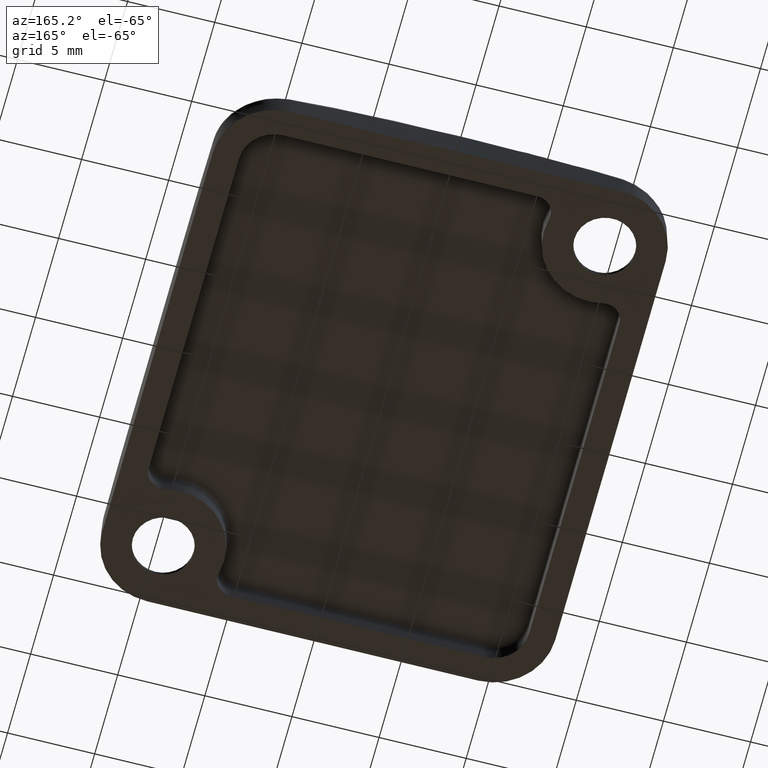
[diagram: clean part render]
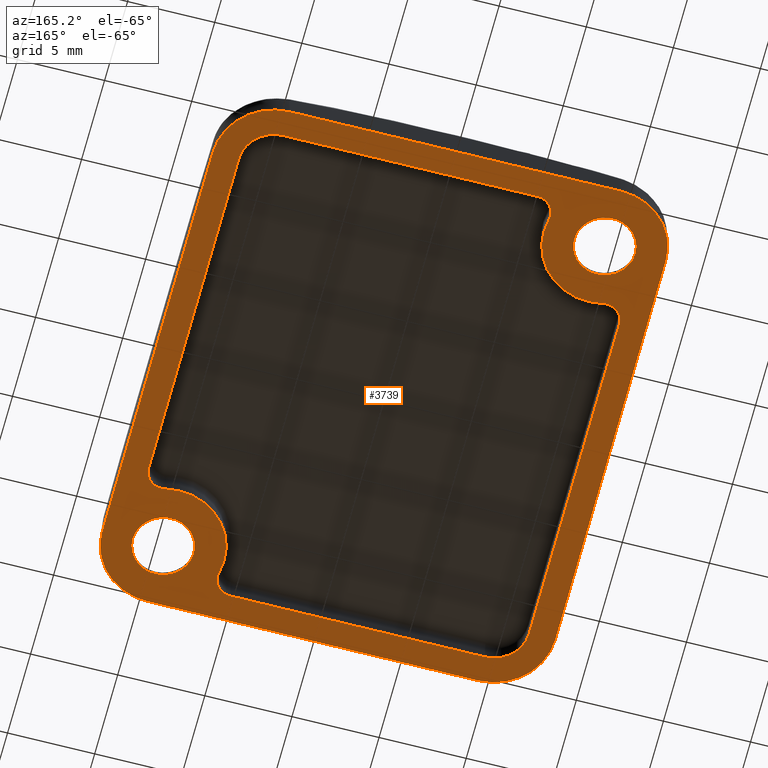
[diagram: same view with one face highlighted and labeled with its STEP entity id]
A machine part, auxiliary view. The second image highlights one B-rep face of the part: STEP entity #3739.
In plain terms, the highlighted planar face has unit normal (0, 0, 1).
Its self-contained STEP definition (entity closure, byte-faithful):
#219=DIRECTION('',(0.E0,1.E0,0.E0));
#220=VECTOR('',#219,2.4E1);
#221=CARTESIAN_POINT('',(1.3E1,-1.2E1,0.E0));
#222=LINE('',#221,#220);
#223=CARTESIAN_POINT('',(9.5E0,1.2E1,0.E0));
#224=DIRECTION('',(0.E0,0.E0,1.E0));
#225=DIRECTION('',(1.E0,0.E0,0.E0));
#226=AXIS2_PLACEMENT_3D('',#223,#224,#225);
#228=DIRECTION('',(-1.E0,0.E0,0.E0));
#229=VECTOR('',#228,1.9E1);
#230=CARTESIAN_POINT('',(9.5E0,1.55E1,0.E0));
#231=LINE('',#230,#229);
#232=CARTESIAN_POINT('',(-9.5E0,1.2E1,0.E0));
#233=DIRECTION('',(0.E0,0.E0,1.E0));
#234=DIRECTION('',(0.E0,1.E0,0.E0));
#235=AXIS2_PLACEMENT_3D('',#232,#233,#234);
#237=DIRECTION('',(0.E0,-1.E0,0.E0));
#238=VECTOR('',#237,2.4E1);
#239=CARTESIAN_POINT('',(-1.3E1,1.2E1,0.E0));
#240=LINE('',#239,#238);
#241=CARTESIAN_POINT('',(-9.5E0,-1.2E1,0.E0));
#242=DIRECTION('',(0.E0,0.E0,1.E0));
#243=DIRECTION('',(-1.E0,0.E0,0.E0));
#244=AXIS2_PLACEMENT_3D('',#241,#242,#243);
#246=DIRECTION('',(1.E0,0.E0,0.E0));
#247=VECTOR('',#246,1.9E1);
#248=CARTESIAN_POINT('',(-9.5E0,-1.55E1,0.E0));
#249=LINE('',#248,#247);
#250=CARTESIAN_POINT('',(9.5E0,-1.2E1,0.E0));
#251=DIRECTION('',(0.E0,0.E0,1.E0));
#252=DIRECTION('',(0.E0,-1.E0,0.E0));
#253=AXIS2_PLACEMENT_3D('',#250,#251,#252);
#255=CARTESIAN_POINT('',(-9.5E0,1.2E1,0.E0));
#256=DIRECTION('',(0.E0,0.E0,1.E0));
#257=DIRECTION('',(1.E0,0.E0,0.E0));
#258=AXIS2_PLACEMENT_3D('',#255,#256,#257);
#260=CARTESIAN_POINT('',(-9.5E0,1.2E1,0.E0));
#261=DIRECTION('',(0.E0,0.E0,1.E0));
#262=DIRECTION('',(-1.E0,0.E0,0.E0));
#263=AXIS2_PLACEMENT_3D('',#260,#261,#262);
#265=CARTESIAN_POINT('',(9.5E0,-1.2E1,0.E0));
#266=DIRECTION('',(0.E0,0.E0,1.E0));
#267=DIRECTION('',(1.E0,0.E0,0.E0));
#268=AXIS2_PLACEMENT_3D('',#265,#266,#267);
#270=CARTESIAN_POINT('',(9.5E0,-1.2E1,0.E0));
#271=DIRECTION('',(0.E0,0.E0,1.E0));
#272=DIRECTION('',(-1.E0,0.E0,0.E0));
#273=AXIS2_PLACEMENT_3D('',#270,#271,#272);
#275=CARTESIAN_POINT('',(-9.5E0,1.2E1,0.E0));
#276=DIRECTION('',(0.E0,0.E0,-1.E0));
#277=DIRECTION('',(9.749960430436E-1,2.222222222222E-1,0.E0));
#278=AXIS2_PLACEMENT_3D('',#275,#276,#277);
#280=DIRECTION('',(1.E0,0.E0,0.E0));
#281=VECTOR('',#280,1.461251780630E1);
#282=CARTESIAN_POINT('',(-5.112517806304E0,1.4E1,0.E0));
#283=LINE('',#282,#281);
#284=CARTESIAN_POINT('',(9.5E0,1.2E1,0.E0));
#285=DIRECTION('',(0.E0,0.E0,-1.E0));
#286=DIRECTION('',(0.E0,1.E0,0.E0));
#287=AXIS2_PLACEMENT_3D('',#284,#285,#286);
#289=DIRECTION('',(0.E0,-1.E0,0.E0));
#290=VECTOR('',#289,1.961251780630E1);
#291=CARTESIAN_POINT('',(1.15E1,1.2E1,0.E0));
#292=LINE('',#291,#290);
#293=CARTESIAN_POINT('',(9.5E0,-1.2E1,0.E0));
#294=DIRECTION('',(0.E0,0.E0,-1.E0));
#295=DIRECTION('',(-9.749960430436E-1,-2.222222222222E-1,0.E0));
#296=AXIS2_PLACEMENT_3D('',#293,#294,#295);
#298=DIRECTION('',(-1.E0,0.E0,0.E0));
#299=VECTOR('',#298,1.461251780630E1);
#300=CARTESIAN_POINT('',(5.112517806304E0,-1.4E1,0.E0));
#301=LINE('',#300,#299);
#302=CARTESIAN_POINT('',(-9.5E0,-1.2E1,0.E0));
#303=DIRECTION('',(0.E0,0.E0,-1.E0));
#304=DIRECTION('',(-1.021405182655E-13,-1.E0,0.E0));
#305=AXIS2_PLACEMENT_3D('',#302,#303,#304);
#307=DIRECTION('',(0.E0,1.E0,0.E0));
#308=VECTOR('',#307,1.961251780630E1);
#309=CARTESIAN_POINT('',(-1.15E1,-1.2E1,0.E0));
#310=LINE('',#309,#308);
#3121=CARTESIAN_POINT('',(-1.05E1,7.612517806304E0,0.E0));
#3122=DIRECTION('',(0.E0,0.E0,1.E0));
#3123=DIRECTION('',(2.222222222222E-1,9.749960430436E-1,0.E0));
#3124=AXIS2_PLACEMENT_3D('',#3121,#3122,#3123);
#3153=CARTESIAN_POINT('',(5.112517806304E0,-1.3E1,0.E0));
#3154=DIRECTION('',(0.E0,0.E0,1.E0));
#3155=DIRECTION('',(0.E0,-1.E0,0.E0));
#3156=AXIS2_PLACEMENT_3D('',#3153,#3154,#3155);
#3166=CARTESIAN_POINT('',(1.05E1,-7.612517806304E0,0.E0));
#3167=DIRECTION('',(0.E0,0.E0,1.E0));
#3168=DIRECTION('',(-2.222222222222E-1,-9.749960430436E-1,0.E0));
#3169=AXIS2_PLACEMENT_3D('',#3166,#3167,#3168);
#3210=CARTESIAN_POINT('',(-5.112517806304E0,1.3E1,0.E0));
#3211=DIRECTION('',(0.E0,0.E0,1.E0));
#3212=DIRECTION('',(0.E0,1.E0,0.E0));
#3213=AXIS2_PLACEMENT_3D('',#3210,#3211,#3212);
#3265=CARTESIAN_POINT('',(1.3E1,-1.2E1,0.E0));
#3266=CARTESIAN_POINT('',(1.3E1,1.2E1,0.E0));
#3267=VERTEX_POINT('',#3265);
#3268=VERTEX_POINT('',#3266);
#3269=CARTESIAN_POINT('',(9.5E0,1.55E1,0.E0));
#3270=VERTEX_POINT('',#3269);
#3271=CARTESIAN_POINT('',(-9.5E0,1.55E1,0.E0));
#3272=VERTEX_POINT('',#3271);
#3273=CARTESIAN_POINT('',(-1.3E1,1.2E1,0.E0));
#3274=VERTEX_POINT('',#3273);
#3275=CARTESIAN_POINT('',(-1.3E1,-1.2E1,0.E0));
#3276=VERTEX_POINT('',#3275);
#3277=CARTESIAN_POINT('',(-9.5E0,-1.55E1,0.E0));
#3278=VERTEX_POINT('',#3277);
#3279=CARTESIAN_POINT('',(9.5E0,-1.55E1,0.E0));
#3280=VERTEX_POINT('',#3279);
#3545=CARTESIAN_POINT('',(-7.75E0,1.2E1,0.E0));
#3546=CARTESIAN_POINT('',(-1.125E1,1.2E1,0.E0));
#3547=VERTEX_POINT('',#3545);
#3548=VERTEX_POINT('',#3546);
#3549=CARTESIAN_POINT('',(1.125E1,-1.2E1,0.E0));
#3550=CARTESIAN_POINT('',(7.75E0,-1.2E1,0.E0));
#3551=VERTEX_POINT('',#3549);
#3552=VERTEX_POINT('',#3550);
#3585=CARTESIAN_POINT('',(9.5E0,1.4E1,0.E0));
#3586=CARTESIAN_POINT('',(1.15E1,1.2E1,0.E0));
#3587=VERTEX_POINT('',#3585);
#3588=VERTEX_POINT('',#3586);
#3589=CARTESIAN_POINT('',(-9.5E0,-1.4E1,0.E0));
#3590=CARTESIAN_POINT('',(-1.15E1,-1.2E1,0.E0));
#3591=VERTEX_POINT('',#3589);
#3592=VERTEX_POINT('',#3590);
#3593=CARTESIAN_POINT('',(-6.087513849348E0,1.277777777778E1,0.E0));
#3595=VERTEX_POINT('',#3593);
#3597=CARTESIAN_POINT('',(-5.112517806304E0,1.4E1,0.E0));
#3599=VERTEX_POINT('',#3597);
#3615=CARTESIAN_POINT('',(1.15E1,-7.612517806304E0,0.E0));
#3616=VERTEX_POINT('',#3615);
#3617=CARTESIAN_POINT('',(1.027777777778E1,-8.587513849348E0,0.E0));
#3619=VERTEX_POINT('',#3617);
#3621=CARTESIAN_POINT('',(6.087513849347E0,-1.277777777778E1,0.E0));
#3623=VERTEX_POINT('',#3621);
#3625=CARTESIAN_POINT('',(5.112517806304E0,-1.4E1,0.E0));
#3627=VERTEX_POINT('',#3625);
#3643=CARTESIAN_POINT('',(-1.15E1,7.612517806304E0,0.E0));
#3644=VERTEX_POINT('',#3643);
#3645=CARTESIAN_POINT('',(-1.027777777778E1,8.587513849347E0,0.E0));
#3647=VERTEX_POINT('',#3645);
#3678=CARTESIAN_POINT('',(0.E0,0.E0,0.E0));
#3679=DIRECTION('',(0.E0,0.E0,1.E0));
#3680=DIRECTION('',(1.E0,0.E0,0.E0));
#3681=AXIS2_PLACEMENT_3D('',#3678,#3679,#3680);
#3682=PLANE('',#3681);
#3684=ORIENTED_EDGE('',*,*,#3683,.T.);
#3686=ORIENTED_EDGE('',*,*,#3685,.T.);
#3688=ORIENTED_EDGE('',*,*,#3687,.T.);
#3690=ORIENTED_EDGE('',*,*,#3689,.T.);
#3692=ORIENTED_EDGE('',*,*,#3691,.T.);
#3694=ORIENTED_EDGE('',*,*,#3693,.T.);
#3696=ORIENTED_EDGE('',*,*,#3695,.T.);
#3698=ORIENTED_EDGE('',*,*,#3697,.T.);
#3699=EDGE_LOOP('',(#3684,#3686,#3688,#3690,#3692,#3694,#3696,#3698));
#3700=FACE_OUTER_BOUND('',#3699,.F.);
#3702=ORIENTED_EDGE('',*,*,#3701,.F.);
#3704=ORIENTED_EDGE('',*,*,#3703,.F.);
#3705=EDGE_LOOP('',(#3702,#3704));
#3706=FACE_BOUND('',#3705,.F.);
#3708=ORIENTED_EDGE('',*,*,#3707,.F.);
#3710=ORIENTED_EDGE('',*,*,#3709,.F.);
#3711=EDGE_LOOP('',(#3708,#3710));
#3712=FACE_BOUND('',#3711,.F.);
#3714=ORIENTED_EDGE('',*,*,#3713,.F.);
#3716=ORIENTED_EDGE('',*,*,#3715,.F.);
#3718=ORIENTED_EDGE('',*,*,#3717,.T.);
#3720=ORIENTED_EDGE('',*,*,#3719,.T.);
#3722=ORIENTED_EDGE('',*,*,#3721,.T.);
#3724=ORIENTED_EDGE('',*,*,#3723,.F.);
#3726=ORIENTED_EDGE('',*,*,#3725,.F.);
#3728=ORIENTED_EDGE('',*,*,#3727,.F.);
#3730=ORIENTED_EDGE('',*,*,#3729,.T.);
#3732=ORIENTED_EDGE('',*,*,#3731,.T.);
#3734=ORIENTED_EDGE('',*,*,#3733,.T.);
#3736=ORIENTED_EDGE('',*,*,#3735,.F.);
#3737=EDGE_LOOP('',(#3714,#3716,#3718,#3720,#3722,#3724,#3726,#3728,#3730,#3732,
#3734,#3736));
#3738=FACE_BOUND('',#3737,.F.);
#227=CIRCLE('',#226,3.5E0);
#236=CIRCLE('',#235,3.5E0);
#245=CIRCLE('',#244,3.5E0);
#254=CIRCLE('',#253,3.5E0);
#259=CIRCLE('',#258,1.75E0);
#264=CIRCLE('',#263,1.75E0);
#269=CIRCLE('',#268,1.75E0);
#274=CIRCLE('',#273,1.75E0);
#279=CIRCLE('',#278,3.5E0);
#288=CIRCLE('',#287,2.E0);
#297=CIRCLE('',#296,3.5E0);
#306=CIRCLE('',#305,2.E0);
#3125=CIRCLE('',#3124,1.E0);
#3157=CIRCLE('',#3156,1.E0);
#3170=CIRCLE('',#3169,1.E0);
#3214=CIRCLE('',#3213,1.E0);
#3683=EDGE_CURVE('',#3267,#3268,#222,.T.);
#3685=EDGE_CURVE('',#3268,#3270,#227,.T.);
#3687=EDGE_CURVE('',#3270,#3272,#231,.T.);
#3689=EDGE_CURVE('',#3272,#3274,#236,.T.);
#3691=EDGE_CURVE('',#3274,#3276,#240,.T.);
#3693=EDGE_CURVE('',#3276,#3278,#245,.T.);
#3695=EDGE_CURVE('',#3278,#3280,#249,.T.);
#3697=EDGE_CURVE('',#3280,#3267,#254,.T.);
#3701=EDGE_CURVE('',#3547,#3548,#259,.T.);
#3703=EDGE_CURVE('',#3548,#3547,#264,.T.);
#3707=EDGE_CURVE('',#3551,#3552,#269,.T.);
#3709=EDGE_CURVE('',#3552,#3551,#274,.T.);
#3713=EDGE_CURVE('',#3595,#3647,#279,.T.);
#3715=EDGE_CURVE('',#3599,#3595,#3214,.T.);
#3717=EDGE_CURVE('',#3599,#3587,#283,.T.);
#3719=EDGE_CURVE('',#3587,#3588,#288,.T.);
#3721=EDGE_CURVE('',#3588,#3616,#292,.T.);
#3723=EDGE_CURVE('',#3619,#3616,#3170,.T.);
#3725=EDGE_CURVE('',#3623,#3619,#297,.T.);
#3727=EDGE_CURVE('',#3627,#3623,#3157,.T.);
#3729=EDGE_CURVE('',#3627,#3591,#301,.T.);
#3731=EDGE_CURVE('',#3591,#3592,#306,.T.);
#3733=EDGE_CURVE('',#3592,#3644,#310,.T.);
#3735=EDGE_CURVE('',#3647,#3644,#3125,.T.);
#3739=ADVANCED_FACE('',(#3700,#3706,#3712,#3738),#3682,.F.);